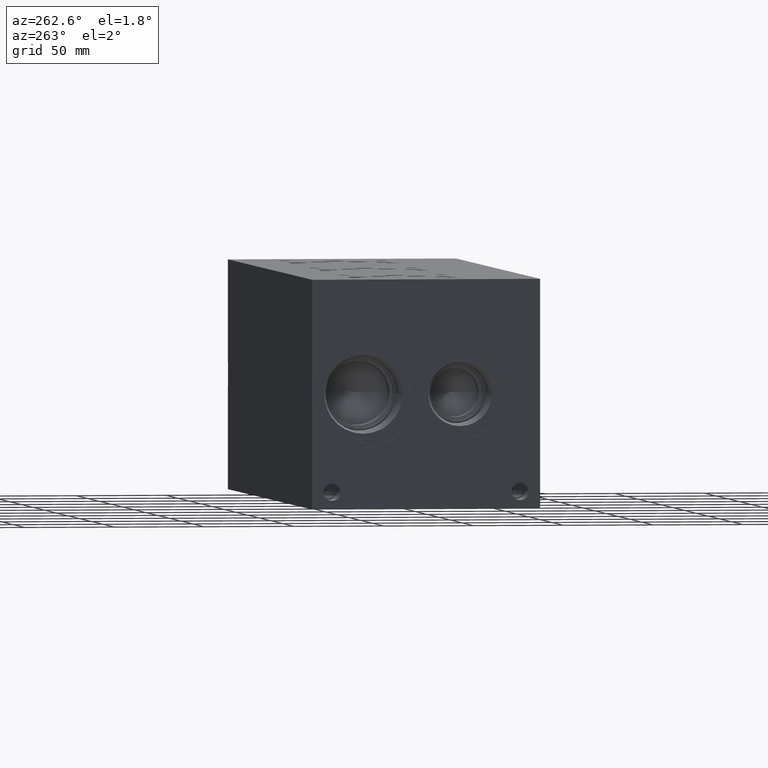
[diagram: clean part render]
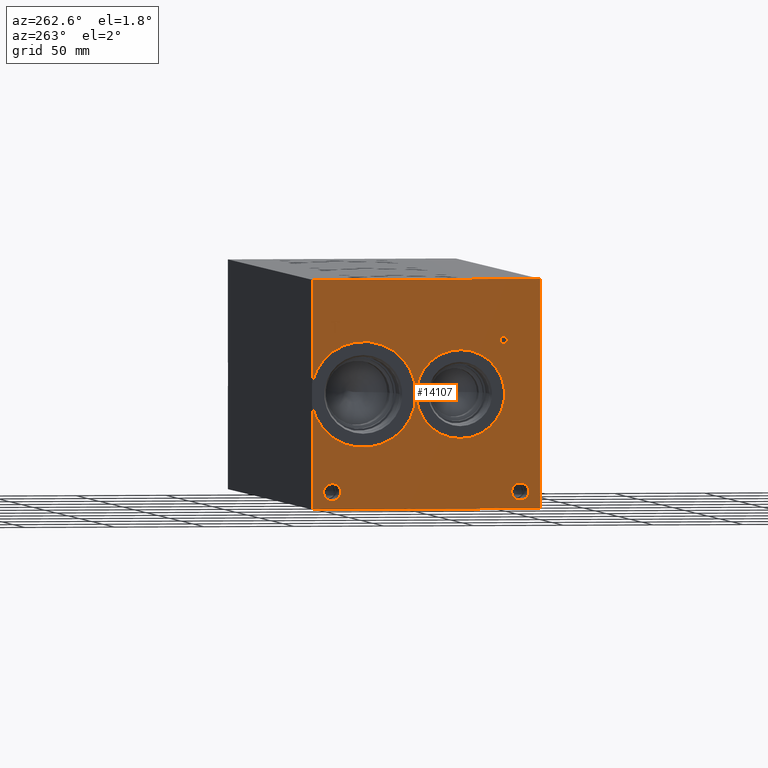
[diagram: same view with one face highlighted and labeled with its STEP entity id]
A machine part, auxiliary view. The second image highlights one B-rep face of the part: STEP entity #14107.
In plain terms, the highlighted planar face has unit normal (-1, 0, 0).
Its self-contained STEP definition (entity closure, byte-faithful):
#213=CIRCLE('',#14886,29.2862);
#214=CIRCLE('',#14887,4.7625);
#215=CIRCLE('',#14888,4.7625);
#216=CIRCLE('',#14889,4.7625);
#217=CIRCLE('',#14890,4.7625);
#218=CIRCLE('',#14891,24.5618);
#219=CIRCLE('',#14892,24.5618);
#600=FACE_BOUND('',#2113,.T.);
#601=FACE_BOUND('',#2114,.T.);
#602=FACE_BOUND('',#2115,.T.);
#603=FACE_BOUND('',#2116,.T.);
#604=FACE_BOUND('',#2117,.T.);
#745=B_SPLINE_CURVE_WITH_KNOTS('',2,(#19493,#19494,#19495,#19496),
 .UNSPECIFIED.,.F.,.F.,(3,1,3),(0.,1.,2.),.UNSPECIFIED.);
#747=B_SPLINE_CURVE_WITH_KNOTS('',2,(#19514,#19515,#19516,#19517),
 .UNSPECIFIED.,.F.,.F.,(3,1,3),(0.,1.,2.),.UNSPECIFIED.);
#749=B_SPLINE_CURVE_WITH_KNOTS('',2,(#19563,#19564,#19565,#19566),
 .UNSPECIFIED.,.F.,.F.,(3,1,3),(0.,1.,2.),.UNSPECIFIED.);
#751=B_SPLINE_CURVE_WITH_KNOTS('',2,(#19581,#19582,#19583,#19584),
 .UNSPECIFIED.,.F.,.F.,(3,1,3),(0.,1.,2.),.UNSPECIFIED.);
#1332=FACE_OUTER_BOUND('',#2112,.T.);
#2112=EDGE_LOOP('',(#9293,#9294,#9295,#9296,#9297,#9298));
#2113=EDGE_LOOP('',(#9299,#9300,#9301,#9302,#9303,#9304,#9305,#9306));
#2114=EDGE_LOOP('',(#9307,#9308));
#2115=EDGE_LOOP('',(#9309,#9310));
#2116=EDGE_LOOP('',(#9311,#9312));
#2117=EDGE_LOOP('',(#9313,#9314,#9315,#9316,#9317,#9318,#9319,#9320,#9321));
#3014=LINE('',#19343,#4313);
#3018=LINE('',#19351,#4317);
#3021=LINE('',#19357,#4320);
#3024=LINE('',#19363,#4323);
#3027=LINE('',#19369,#4326);
#3030=LINE('',#19375,#4329);
#3033=LINE('',#19381,#4332);
#3036=LINE('',#19386,#4335);
#3054=LINE('',#19526,#4353);
#3057=LINE('',#19532,#4356);
#3060=LINE('',#19538,#4359);
#3063=LINE('',#19544,#4362);
#3066=LINE('',#19550,#4365);
#3070=LINE('',#19595,#4369);
#3071=LINE('',#19597,#4370);
#3072=LINE('',#19599,#4371);
#3073=LINE('',#19601,#4372);
#3074=LINE('',#19602,#4373);
#4313=VECTOR('',#15932,10.);
#4317=VECTOR('',#15938,10.);
#4320=VECTOR('',#15943,10.);
#4323=VECTOR('',#15948,10.);
#4326=VECTOR('',#15953,10.);
#4329=VECTOR('',#15958,10.);
#4332=VECTOR('',#15963,10.);
#4335=VECTOR('',#15968,10.);
#4353=VECTOR('',#15996,10.);
#4356=VECTOR('',#16001,10.);
#4359=VECTOR('',#16006,10.);
#4362=VECTOR('',#16011,10.);
#4365=VECTOR('',#16016,10.);
#4369=VECTOR('',#16026,10.);
#4370=VECTOR('',#16027,10.);
#4371=VECTOR('',#16028,10.);
#4372=VECTOR('',#16029,10.);
#4373=VECTOR('',#16030,10.);
#5611=VERTEX_POINT('',#19341);
#5612=VERTEX_POINT('',#19342);
#5615=VERTEX_POINT('',#19350);
#5617=VERTEX_POINT('',#19356);
#5619=VERTEX_POINT('',#19362);
#5621=VERTEX_POINT('',#19368);
#5623=VERTEX_POINT('',#19374);
#5625=VERTEX_POINT('',#19380);
#5641=VERTEX_POINT('',#19491);
#5642=VERTEX_POINT('',#19492);
#5645=VERTEX_POINT('',#19513);
#5647=VERTEX_POINT('',#19525);
#5649=VERTEX_POINT('',#19531);
#5651=VERTEX_POINT('',#19537);
#5653=VERTEX_POINT('',#19543);
#5655=VERTEX_POINT('',#19549);
#5657=VERTEX_POINT('',#19562);
#5659=VERTEX_POINT('',#19591);
#5660=VERTEX_POINT('',#19592);
#5661=VERTEX_POINT('',#19594);
#5662=VERTEX_POINT('',#19596);
#5663=VERTEX_POINT('',#19598);
#5664=VERTEX_POINT('',#19600);
#5665=VERTEX_POINT('',#19603);
#5666=VERTEX_POINT('',#19604);
#5667=VERTEX_POINT('',#19607);
#5668=VERTEX_POINT('',#19608);
#5669=VERTEX_POINT('',#19611);
#5670=VERTEX_POINT('',#19612);
#7050=EDGE_CURVE('',#5611,#5612,#3014,.T.);
#7054=EDGE_CURVE('',#5615,#5611,#3018,.T.);
#7057=EDGE_CURVE('',#5617,#5615,#3021,.T.);
#7060=EDGE_CURVE('',#5619,#5617,#3024,.T.);
#7063=EDGE_CURVE('',#5621,#5619,#3027,.T.);
#7066=EDGE_CURVE('',#5623,#5621,#3030,.T.);
#7069=EDGE_CURVE('',#5625,#5623,#3033,.T.);
#7072=EDGE_CURVE('',#5612,#5625,#3036,.T.);
#7095=EDGE_CURVE('',#5641,#5642,#745,.T.);
#7099=EDGE_CURVE('',#5645,#5641,#747,.T.);
#7102=EDGE_CURVE('',#5647,#5645,#3054,.T.);
#7105=EDGE_CURVE('',#5649,#5647,#3057,.T.);
#7108=EDGE_CURVE('',#5651,#5649,#3060,.T.);
#7111=EDGE_CURVE('',#5653,#5651,#3063,.T.);
#7114=EDGE_CURVE('',#5655,#5653,#3066,.T.);
#7117=EDGE_CURVE('',#5657,#5655,#749,.T.);
#7120=EDGE_CURVE('',#5642,#5657,#751,.T.);
#7122=EDGE_CURVE('',#5659,#5660,#213,.T.);
#7123=EDGE_CURVE('',#5661,#5660,#3070,.T.);
#7124=EDGE_CURVE('',#5661,#5662,#3071,.T.);
#7125=EDGE_CURVE('',#5662,#5663,#3072,.T.);
#7126=EDGE_CURVE('',#5664,#5663,#3073,.T.);
#7127=EDGE_CURVE('',#5659,#5664,#3074,.T.);
#7128=EDGE_CURVE('',#5665,#5666,#214,.T.);
#7129=EDGE_CURVE('',#5666,#5665,#215,.T.);
#7130=EDGE_CURVE('',#5667,#5668,#216,.T.);
#7131=EDGE_CURVE('',#5668,#5667,#217,.T.);
#7132=EDGE_CURVE('',#5669,#5670,#218,.T.);
#7133=EDGE_CURVE('',#5670,#5669,#219,.T.);
#9293=ORIENTED_EDGE('',*,*,#7122,.T.);
#9294=ORIENTED_EDGE('',*,*,#7123,.F.);
#9295=ORIENTED_EDGE('',*,*,#7124,.T.);
#9296=ORIENTED_EDGE('',*,*,#7125,.T.);
#9297=ORIENTED_EDGE('',*,*,#7126,.F.);
#9298=ORIENTED_EDGE('',*,*,#7127,.F.);
#9299=ORIENTED_EDGE('',*,*,#7050,.T.);
#9300=ORIENTED_EDGE('',*,*,#7072,.T.);
#9301=ORIENTED_EDGE('',*,*,#7069,.T.);
#9302=ORIENTED_EDGE('',*,*,#7066,.T.);
#9303=ORIENTED_EDGE('',*,*,#7063,.T.);
#9304=ORIENTED_EDGE('',*,*,#7060,.T.);
#9305=ORIENTED_EDGE('',*,*,#7057,.T.);
#9306=ORIENTED_EDGE('',*,*,#7054,.T.);
#9307=ORIENTED_EDGE('',*,*,#7128,.T.);
#9308=ORIENTED_EDGE('',*,*,#7129,.T.);
#9309=ORIENTED_EDGE('',*,*,#7130,.T.);
#9310=ORIENTED_EDGE('',*,*,#7131,.T.);
#9311=ORIENTED_EDGE('',*,*,#7132,.T.);
#9312=ORIENTED_EDGE('',*,*,#7133,.T.);
#9313=ORIENTED_EDGE('',*,*,#7095,.T.);
#9314=ORIENTED_EDGE('',*,*,#7120,.T.);
#9315=ORIENTED_EDGE('',*,*,#7117,.T.);
#9316=ORIENTED_EDGE('',*,*,#7114,.T.);
#9317=ORIENTED_EDGE('',*,*,#7111,.T.);
#9318=ORIENTED_EDGE('',*,*,#7108,.T.);
#9319=ORIENTED_EDGE('',*,*,#7105,.T.);
#9320=ORIENTED_EDGE('',*,*,#7102,.T.);
#9321=ORIENTED_EDGE('',*,*,#7099,.T.);
#13177=PLANE('',#14885);
#14107=ADVANCED_FACE('',(#1332,#600,#601,#602,#603,#604),#13177,.T.);
#14885=AXIS2_PLACEMENT_3D('',#19590,#16022,#16023);
#14886=AXIS2_PLACEMENT_3D('',#19593,#16024,#16025);
#14887=AXIS2_PLACEMENT_3D('',#19605,#16031,#16032);
#14888=AXIS2_PLACEMENT_3D('',#19606,#16033,#16034);
#14889=AXIS2_PLACEMENT_3D('',#19609,#16035,#16036);
#14890=AXIS2_PLACEMENT_3D('',#19610,#16037,#16038);
#14891=AXIS2_PLACEMENT_3D('',#19613,#16039,#16040);
#14892=AXIS2_PLACEMENT_3D('',#19614,#16041,#16042);
#15932=DIRECTION('',(0.,1.,2.1048822476866E-14));
#15938=DIRECTION('',(0.,3.17280044688051E-15,-1.));
#15943=DIRECTION('',(0.,1.,8.33818088455555E-15));
#15948=DIRECTION('',(0.,0.,-1.));
#15953=DIRECTION('',(0.,-1.,-3.47984565141734E-15));
#15958=DIRECTION('',(0.,0.,1.));
#15963=DIRECTION('',(0.,1.,0.));
#15968=DIRECTION('',(0.,-3.17280044688052E-15,1.));
#15996=DIRECTION('',(0.,-1.,0.));
#16001=DIRECTION('',(0.,-2.79741238752512E-15,1.));
#16006=DIRECTION('',(0.,1.,0.));
#16011=DIRECTION('',(0.,1.876090699025E-15,-1.));
#16016=DIRECTION('',(0.,1.,0.));
#16022=DIRECTION('center_axis',(-1.,0.,0.));
#16023=DIRECTION('ref_axis',(0.,-1.,0.));
#16024=DIRECTION('center_axis',(1.,0.,0.));
#16025=DIRECTION('ref_axis',(0.,0.,1.));
#16026=DIRECTION('',(0.,0.,1.));
#16027=DIRECTION('',(0.,-1.,0.));
#16028=DIRECTION('',(0.,0.,1.));
#16029=DIRECTION('',(0.,-1.,0.));
#16030=DIRECTION('',(0.,0.,1.));
#16031=DIRECTION('center_axis',(1.,0.,0.));
#16032=DIRECTION('ref_axis',(0.,1.,0.));
#16033=DIRECTION('center_axis',(1.,0.,0.));
#16034=DIRECTION('ref_axis',(0.,1.,0.));
#16035=DIRECTION('center_axis',(1.,0.,0.));
#16036=DIRECTION('ref_axis',(0.,1.,0.));
#16037=DIRECTION('center_axis',(1.,0.,0.));
#16038=DIRECTION('ref_axis',(0.,1.,0.));
#16039=DIRECTION('center_axis',(1.,0.,0.));
#16040=DIRECTION('ref_axis',(0.,0.,1.));
#16041=DIRECTION('center_axis',(1.,0.,0.));
#16042=DIRECTION('ref_axis',(0.,0.,1.));
#19341=CARTESIAN_POINT('',(0.,113.712084728547,97.63125));
#19342=CARTESIAN_POINT('',(0.,114.556006920087,97.63125));
#19343=CARTESIAN_POINT('',(0.,120.356042364272,97.6312500000002));
#19350=CARTESIAN_POINT('',(0.,113.712084728547,103.229953319482));
#19351=CARTESIAN_POINT('',(0.,113.712084728547,51.6149766597408));
#19356=CARTESIAN_POINT('',(0.,111.581695781612,103.229953319482));
#19357=CARTESIAN_POINT('',(0.,119.290847890806,103.229953319482));
#19362=CARTESIAN_POINT('',(0.,111.581695781612,103.981249904633));
#19363=CARTESIAN_POINT('',(0.,111.581695781612,51.9906249523163));
#19368=CARTESIAN_POINT('',(0.,116.686395867022,103.981249904633));
#19369=CARTESIAN_POINT('',(0.,121.843197933511,103.981249904633));
#19374=CARTESIAN_POINT('',(0.,116.686395867022,103.229953319482));
#19375=CARTESIAN_POINT('',(0.,116.686395867022,51.6149766597408));
#19380=CARTESIAN_POINT('',(0.,114.556006920087,103.229953319482));
#19381=CARTESIAN_POINT('',(0.,120.778003460043,103.229953319482));
#19386=CARTESIAN_POINT('',(0.,114.556006920087,48.815625));
#19491=CARTESIAN_POINT('',(0.,19.1181827976406,94.8537681439707));
#19492=CARTESIAN_POINT('',(0.,18.361740345468,93.3357373726039));
#19493=CARTESIAN_POINT('Ctrl Pts',(0.,19.1181827976406,94.8537681439707));
#19494=CARTESIAN_POINT('Ctrl Pts',(0.,18.7631179731514,94.6119123939563));
#19495=CARTESIAN_POINT('Ctrl Pts',(0.,18.361740345468,93.8657616758269));
#19496=CARTESIAN_POINT('Ctrl Pts',(0.,18.361740345468,93.3357373726039));
#19513=CARTESIAN_POINT('',(0.,20.7802978456117,95.2499999046326));
#19514=CARTESIAN_POINT('Ctrl Pts',(0.,20.7802978456117,95.2499999046326));
#19515=CARTESIAN_POINT('Ctrl Pts',(0.,20.2142524732376,95.2499999046326));
#19516=CARTESIAN_POINT('Ctrl Pts',(0.,19.4217889519139,95.0647486918556));
#19517=CARTESIAN_POINT('Ctrl Pts',(0.,19.1181827976406,94.8537681439707));
#19525=CARTESIAN_POINT('',(0.,22.3755166223022,95.2499999046326));
#19526=CARTESIAN_POINT('',(0.,74.6877583111511,95.2499999046326));
#19531=CARTESIAN_POINT('',(0.,22.3755166223022,88.9));
#19532=CARTESIAN_POINT('',(0.,22.3755166223023,44.4499999999999));
#19537=CARTESIAN_POINT('',(0.,21.5315944307627,88.9));
#19538=CARTESIAN_POINT('',(0.,74.2657972153814,88.9));
#19543=CARTESIAN_POINT('',(0.,21.5315944307627,91.2670988299278));
#19544=CARTESIAN_POINT('',(0.,21.5315944307628,45.6335494149638));
#19549=CARTESIAN_POINT('',(0.,20.8163189147628,91.2670988299278));
#19550=CARTESIAN_POINT('',(0.,73.9081594573814,91.2670988299278));
#19562=CARTESIAN_POINT('',(0.,18.9174939837989,91.9257698086904));
#19563=CARTESIAN_POINT('Ctrl Pts',(0.,18.9174939837989,91.9257698086904));
#19564=CARTESIAN_POINT('Ctrl Pts',(0.,19.2468294731802,91.6015801863307));
#19565=CARTESIAN_POINT('Ctrl Pts',(0.,20.1370644679139,91.2670988299278));
#19566=CARTESIAN_POINT('Ctrl Pts',(0.,20.8163189147628,91.2670988299278));
#19581=CARTESIAN_POINT('Ctrl Pts',(0.,18.361740345468,93.3357373726039));
#19582=CARTESIAN_POINT('Ctrl Pts',(0.,18.361740345468,92.9240680108773));
#19583=CARTESIAN_POINT('Ctrl Pts',(0.,18.6550547656982,92.1830631597695));
#19584=CARTESIAN_POINT('Ctrl Pts',(0.,18.9174939837989,91.9257698086904));
#19590=CARTESIAN_POINT('Origin',(0.,127.,0.));
#19591=CARTESIAN_POINT('',(0.,127.,69.9148955907325));
#19592=CARTESIAN_POINT('',(0.,127.,57.0851044092675));
#19593=CARTESIAN_POINT('Origin',(0.,98.425,63.5));
#19594=CARTESIAN_POINT('',(0.,127.,0.));
#19595=CARTESIAN_POINT('',(0.,127.,0.));
#19596=CARTESIAN_POINT('',(0.,0.,0.));
#19597=CARTESIAN_POINT('',(0.,127.,0.));
#19598=CARTESIAN_POINT('',(0.,0.,127.));
#19599=CARTESIAN_POINT('',(0.,0.,0.));
#19600=CARTESIAN_POINT('',(0.,127.,127.));
#19601=CARTESIAN_POINT('',(0.,127.,127.));
#19602=CARTESIAN_POINT('',(0.,127.,0.));
#19603=CARTESIAN_POINT('',(0.,15.8877,9.52500000000001));
#19604=CARTESIAN_POINT('',(0.,6.3627,9.52500000000001));
#19605=CARTESIAN_POINT('Origin',(0.,11.1252,9.52500000000001));
#19606=CARTESIAN_POINT('Origin',(0.,11.1252,9.52500000000001));
#19607=CARTESIAN_POINT('',(0.,120.6627,9.52500000000001));
#19608=CARTESIAN_POINT('',(0.,111.1377,9.52500000000001));
#19609=CARTESIAN_POINT('Origin',(0.,115.9002,9.52500000000001));
#19610=CARTESIAN_POINT('Origin',(0.,115.9002,9.52500000000001));
#19611=CARTESIAN_POINT('',(0.,44.45,88.0618));
#19612=CARTESIAN_POINT('',(0.,44.45,38.9382));
#19613=CARTESIAN_POINT('Origin',(0.,44.45,63.5));
#19614=CARTESIAN_POINT('Origin',(0.,44.45,63.5));